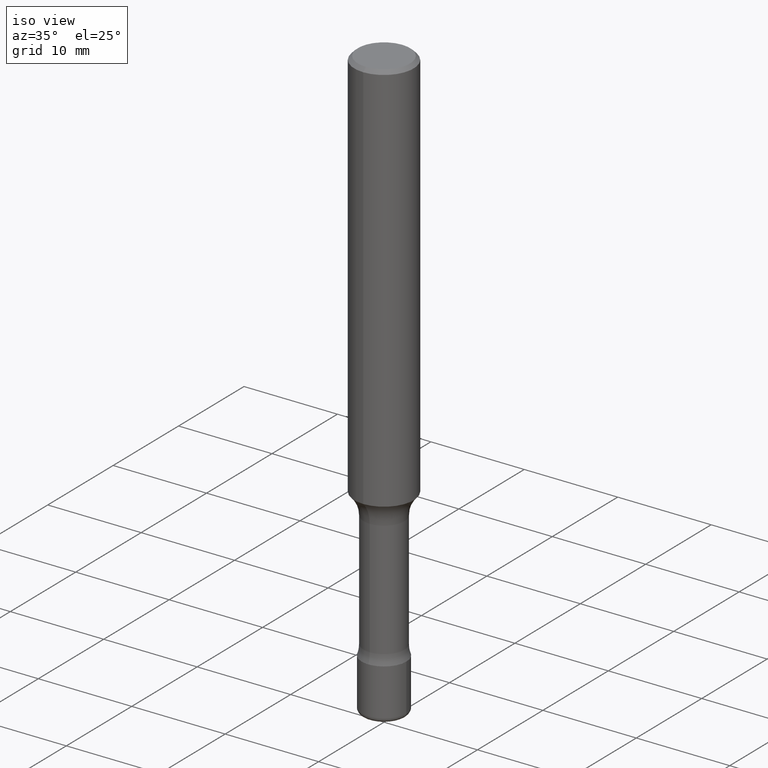
[diagram: clean part render]
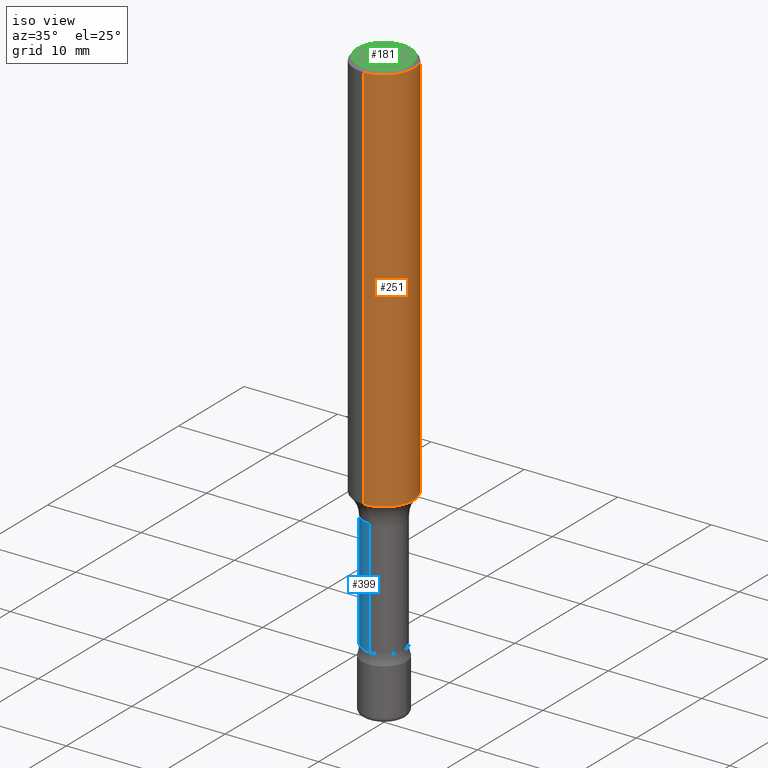
[diagram: same view with three faces highlighted in distinct colors, each labeled with its STEP entity id]
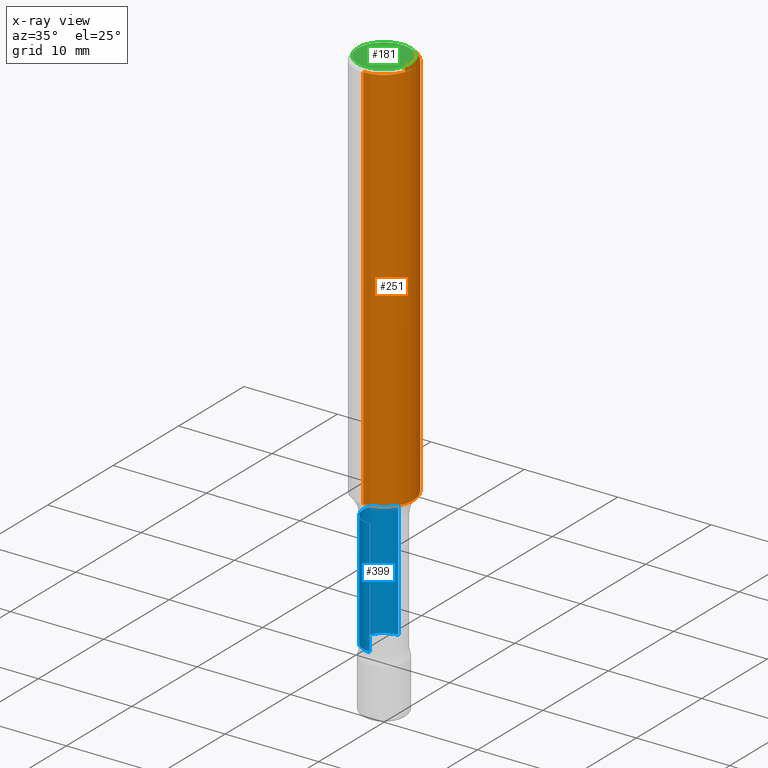
[diagram: x-ray of the same camera — body ghosted, the three highlighted faces saturated]
A machine part, iso view with three faces highlighted in distinct colors.
The next image is the same camera in x-ray (body ghosted, the three faces saturated) — at least one of them is partly hidden behind the body in this view.
Their STEP definitions:

[orange] entity #251 — the highlighted cylindrical surface (edge-blend (fillet) strip) has radius 3.175 mm, axis along (-0, 0, 1).
#21 = DIRECTION ( 'NONE',  ( -6.982962677686265922E-15, -1.000000000000000000, 4.370956789862821150E-15 ) ) ;
#35 = ORIENTED_EDGE ( 'NONE', *, *, #137, .T. ) ;
#45 = VERTEX_POINT ( 'NONE', #341 ) ;
#47 = EDGE_CURVE ( 'NONE', #242, #484, #496, .T. ) ;
#58 = VECTOR ( 'NONE', #223, 39.37007874015748143 ) ;
#89 = EDGE_CURVE ( 'NONE', #484, #284, #202, .T. ) ;
#118 = CARTESIAN_POINT ( 'NONE',  ( -8.728703347107426139E-16, -0.1250000000000057732, -1.659286164230586946 ) ) ;
#125 = CIRCLE ( 'NONE', #481, 0.1250000000000000000 ) ;
#130 = VECTOR ( 'NONE', #451, 39.37007874015748143 ) ;
#131 = CARTESIAN_POINT ( 'NONE',  ( 3.668723120913929659E-31, -5.236477465210122771E-17, -0.01500000000000001506 ) ) ;
#135 = CARTESIAN_POINT ( 'NONE',  ( -8.728703347107832402E-16, -0.1250000000000000000, 9.144465209920891591E-16 ) ) ;
#137 = EDGE_CURVE ( 'NONE', #242, #45, #125, .T. ) ;
#161 = ORIENTED_EDGE ( 'NONE', *, *, #47, .F. ) ;
#187 = EDGE_LOOP ( 'NONE', ( #35, #321, #270, #161 ) ) ;
#194 = FACE_OUTER_BOUND ( 'NONE', #187, .T. ) ;
#202 = CIRCLE ( 'NONE', #491, 0.1250000000000000000 ) ;
#214 = CARTESIAN_POINT ( 'NONE',  ( 4.058307676616892084E-29, -5.792543071552269499E-15, -1.659286164230587390 ) ) ;
#223 = DIRECTION ( 'NONE',  ( -2.445815413942617636E-29, 3.490984976806744767E-15, 1.000000000000000000 ) ) ;
#242 = VERTEX_POINT ( 'NONE', #118 ) ;
#251 = ADVANCED_FACE ( 'NONE', ( #194 ), #395, .T. ) ;
#256 = DIRECTION ( 'NONE',  ( -2.445815413942617356E-29, 3.490984976806744767E-15, 1.000000000000000000 ) ) ;
#270 = ORIENTED_EDGE ( 'NONE', *, *, #89, .F. ) ;
#284 = VERTEX_POINT ( 'NONE', #477 ) ;
#321 = ORIENTED_EDGE ( 'NONE', *, *, #520, .T. ) ;
#330 = CARTESIAN_POINT ( 'NONE',  ( -8.575622497214409523E-16, -0.1250000000000000555, -0.01499999999999957964 ) ) ;
#341 = CARTESIAN_POINT ( 'NONE',  ( 8.881784197001654642E-16, 0.1249999999999941713, -1.659286164230588057 ) ) ;
#354 = DIRECTION ( 'NONE',  ( -6.982962677686265922E-15, -1.000000000000000000, 3.490984976806744767E-15 ) ) ;
#360 = CARTESIAN_POINT ( 'NONE',  ( -1.169113584055446105E-44, 1.669184350826100908E-30, 4.780733988912460139E-16 ) ) ;
#395 = CYLINDRICAL_SURFACE ( 'NONE', #495, 0.1250000000000000000 ) ;
#414 = DIRECTION ( 'NONE',  ( -6.982962677686265922E-15, -1.000000000000000000, 3.483106191921935554E-15 ) ) ;
#451 = DIRECTION ( 'NONE',  ( -2.445815413942617636E-29, 3.490984976806744767E-15, 1.000000000000000000 ) ) ;
#463 = CARTESIAN_POINT ( 'NONE',  ( 8.881784197001251337E-16, 0.1250000000000000000, 4.170027679040298583E-17 ) ) ;
#477 = CARTESIAN_POINT ( 'NONE',  ( 8.728703347107836346E-16, 0.1249999999999999445, -0.01500000000000045047 ) ) ;
#481 = AXIS2_PLACEMENT_3D ( 'NONE', #214, #498, #21 ) ;
#484 = VERTEX_POINT ( 'NONE', #330 ) ;
#487 = LINE ( 'NONE', #463, #58 ) ;
#491 = AXIS2_PLACEMENT_3D ( 'NONE', #131, #256, #414 ) ;
#495 = AXIS2_PLACEMENT_3D ( 'NONE', #360, #518, #354 ) ;
#496 = LINE ( 'NONE', #135, #130 ) ;
#498 = DIRECTION ( 'NONE',  ( -2.445815413942617356E-29, 3.490984976806744767E-15, 1.000000000000000000 ) ) ;
#518 = DIRECTION ( 'NONE',  ( -2.445815413942617356E-29, 3.490984976806744767E-15, 1.000000000000000000 ) ) ;
#520 = EDGE_CURVE ( 'NONE', #45, #284, #487, .T. ) ;

[blue] entity #399 — the highlighted cylindrical surface (edge-blend (fillet) strip) has radius 2.1844 mm, axis along (-0, 0, 1).
#2 = DIRECTION ( 'NONE',  ( -2.445815413942617356E-29, 3.490984976806744767E-15, 1.000000000000000000 ) ) ;
#5 = CARTESIAN_POINT ( 'NONE',  ( 7.496225862269470868E-16, 0.08599999999999387301, -1.750000000000000444 ) ) ;
#8 = LINE ( 'NONE', #167, #488 ) ;
#18 = EDGE_CURVE ( 'NONE', #31, #249, #446, .T. ) ;
#28 = DIRECTION ( 'NONE',  ( -2.445815413942617356E-29, 3.490984976806744767E-15, 1.000000000000000000 ) ) ;
#31 = VERTEX_POINT ( 'NONE', #54 ) ;
#54 = CARTESIAN_POINT ( 'NONE',  ( 6.110667527537350203E-16, 0.08599999999999224931, -2.238670593126608210 ) ) ;
#91 = AXIS2_PLACEMENT_3D ( 'NONE', #388, #28, #237 ) ;
#112 = ORIENTED_EDGE ( 'NONE', *, *, #376, .T. ) ;
#115 = ORIENTED_EDGE ( 'NONE', *, *, #18, .T. ) ;
#159 = VECTOR ( 'NONE', #428, 39.37007874015748143 ) ;
#162 = DIRECTION ( 'NONE',  ( -6.982962677686266711E-15, -1.000000000000000000, 3.176567434493329957E-15 ) ) ;
#167 = CARTESIAN_POINT ( 'NONE',  ( 6.110667527536862095E-16, 0.08600000000000002087, 1.778486908858659326E-16 ) ) ;
#168 = CIRCLE ( 'NONE', #328, 0.08599999999999997924 ) ;
#180 = CARTESIAN_POINT ( 'NONE',  ( -6.005347902809759284E-16, -0.08600000000000609934, -1.750000000000000000 ) ) ;
#190 = VERTEX_POINT ( 'NONE', #180 ) ;
#192 = ORIENTED_EDGE ( 'NONE', *, *, #470, .F. ) ;
#197 = CARTESIAN_POINT ( 'NONE',  ( -6.005347902809646871E-16, -0.08600000000000788958, -2.238670593126607766 ) ) ;
#216 = DIRECTION ( 'NONE',  ( -6.982962677686265922E-15, -1.000000000000000000, 3.176567434493326407E-15 ) ) ;
#234 = CYLINDRICAL_SURFACE ( 'NONE', #91, 0.08600000000000002087 ) ;
#237 = DIRECTION ( 'NONE',  ( -6.982962677686265922E-15, -1.000000000000000000, 3.490984976806745162E-15 ) ) ;
#240 = FACE_OUTER_BOUND ( 'NONE', #517, .T. ) ;
#249 = VERTEX_POINT ( 'NONE', #197 ) ;
#269 = LINE ( 'NONE', #425, #159 ) ;
#328 = AXIS2_PLACEMENT_3D ( 'NONE', #365, #2, #162 ) ;
#335 = DIRECTION ( 'NONE',  ( -2.445815413942617636E-29, 3.490984976806744767E-15, 1.000000000000000000 ) ) ;
#365 = CARTESIAN_POINT ( 'NONE',  ( 4.280176974399580513E-29, -6.109223709411804427E-15, -1.750000000000000222 ) ) ;
#376 = EDGE_CURVE ( 'NONE', #249, #190, #269, .T. ) ;
#388 = CARTESIAN_POINT ( 'NONE',  ( -1.169113584055446105E-44, 1.669184350826100908E-30, 4.780733988912460139E-16 ) ) ;
#399 = ADVANCED_FACE ( 'NONE', ( #240 ), #234, .T. ) ;
#407 = AXIS2_PLACEMENT_3D ( 'NONE', #493, #447, #216 ) ;
#416 = EDGE_CURVE ( 'NONE', #31, #440, #8, .T. ) ;
#425 = CARTESIAN_POINT ( 'NONE',  ( -6.005347902810190199E-16, -0.08600000000000002087, 7.782981068966262185E-16 ) ) ;
#428 = DIRECTION ( 'NONE',  ( -2.445815413942617636E-29, 3.490984976806744767E-15, 1.000000000000000000 ) ) ;
#440 = VERTEX_POINT ( 'NONE', #5 ) ;
#446 = CIRCLE ( 'NONE', #407, 0.08600000000000007638 ) ;
#447 = DIRECTION ( 'NONE',  ( -2.445815413942617356E-29, 3.490984976806744767E-15, 1.000000000000000000 ) ) ;
#468 = ORIENTED_EDGE ( 'NONE', *, *, #416, .F. ) ;
#470 = EDGE_CURVE ( 'NONE', #440, #190, #168, .T. ) ;
#488 = VECTOR ( 'NONE', #335, 39.37007874015748143 ) ;
#493 = CARTESIAN_POINT ( 'NONE',  ( 5.475375043409118426E-29, -7.815165408624032108E-15, -2.238670593126607766 ) ) ;
#517 = EDGE_LOOP ( 'NONE', ( #468, #115, #112, #192 ) ) ;

[green] entity #181 — the highlighted planar face has unit normal (0, -0, -1).
#19 = ORIENTED_EDGE ( 'NONE', *, *, #117, .T. ) ;
#30 = CARTESIAN_POINT ( 'NONE',  ( 8.204981146281365554E-16, 0.1100000000000000283, -3.985137795026849284E-16 ) ) ;
#49 = CIRCLE ( 'NONE', #120, 0.1100000000000000283 ) ;
#50 = CIRCLE ( 'NONE', #76, 0.1100000000000000283 ) ;
#56 = DIRECTION ( 'NONE',  ( 2.445815413942617075E-29, -3.490984976806744767E-15, -1.000000000000000000 ) ) ;
#60 = FACE_OUTER_BOUND ( 'NONE', #281, .T. ) ;
#76 = AXIS2_PLACEMENT_3D ( 'NONE', #77, #467, #351 ) ;
#77 = CARTESIAN_POINT ( 'NONE',  ( 3.564331325213167551E-46, -5.040094789658283719E-32, -1.450543205394286918E-17 ) ) ;
#94 = AXIS2_PLACEMENT_3D ( 'NONE', #222, #56, #219 ) ;
#117 = EDGE_CURVE ( 'NONE', #306, #238, #49, .T. ) ;
#120 = AXIS2_PLACEMENT_3D ( 'NONE', #301, #138, #173 ) ;
#138 = DIRECTION ( 'NONE',  ( -2.445815413942617356E-29, 3.490984976806744767E-15, 1.000000000000000000 ) ) ;
#173 = DIRECTION ( 'NONE',  ( -6.982962677686265922E-15, -1.000000000000000000, 3.490984976806744373E-15 ) ) ;
#181 = ADVANCED_FACE ( 'NONE', ( #60 ), #379, .F. ) ;
#219 = DIRECTION ( 'NONE',  ( 6.982962677686265922E-15, 1.000000000000000000, -3.490984976806744767E-15 ) ) ;
#222 = CARTESIAN_POINT ( 'NONE',  ( 7.681258945454894762E-16, 0.1100000000000000283, -1.522243640300903790E-16 ) ) ;
#238 = VERTEX_POINT ( 'NONE', #244 ) ;
#244 = CARTESIAN_POINT ( 'NONE',  ( -8.061085147381547495E-16, -0.1100000000000000283, 3.695029153947991038E-16 ) ) ;
#281 = EDGE_LOOP ( 'NONE', ( #19, #358 ) ) ;
#301 = CARTESIAN_POINT ( 'NONE',  ( 3.564331325213167551E-46, -5.040094789658283719E-32, -1.450543205394286918E-17 ) ) ;
#306 = VERTEX_POINT ( 'NONE', #30 ) ;
#332 = EDGE_CURVE ( 'NONE', #238, #306, #50, .T. ) ;
#351 = DIRECTION ( 'NONE',  ( -6.982962677686265922E-15, -1.000000000000000000, 3.490984976806744373E-15 ) ) ;
#358 = ORIENTED_EDGE ( 'NONE', *, *, #332, .T. ) ;
#379 = PLANE ( 'NONE',  #94 ) ;
#467 = DIRECTION ( 'NONE',  ( -2.445815413942617356E-29, 3.490984976806744767E-15, 1.000000000000000000 ) ) ;